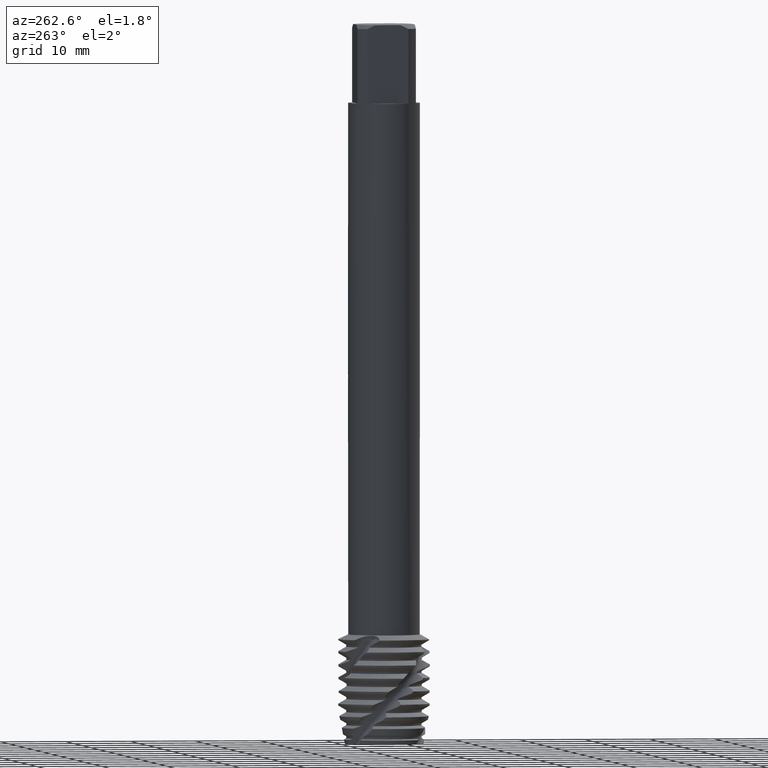
[diagram: clean part render]
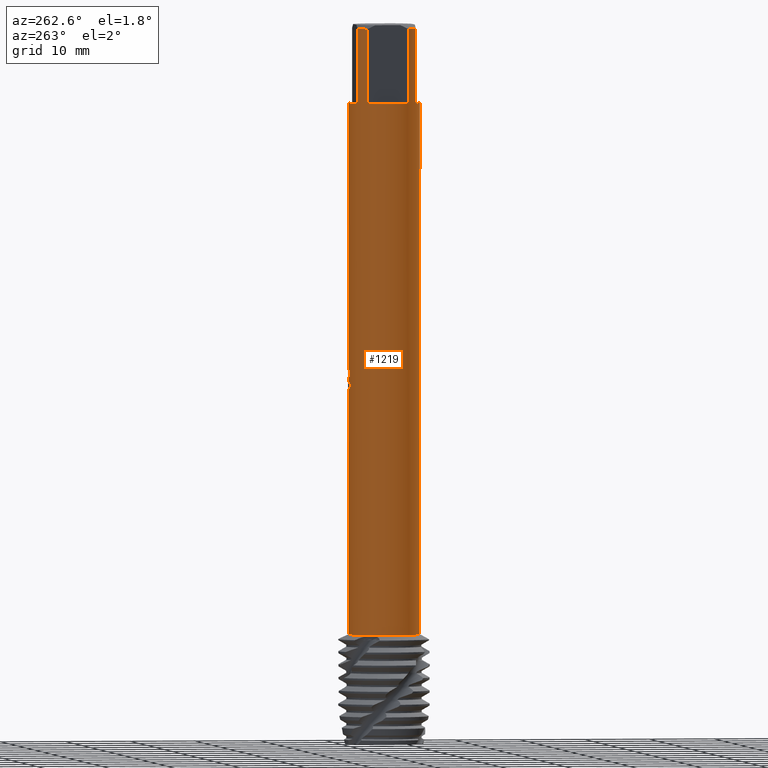
[diagram: same view with one face highlighted and labeled with its STEP entity id]
A machine part, auxiliary view. The second image highlights one B-rep face of the part: STEP entity #1219.
In plain terms, the highlighted cylindrical surface (edge-blend (fillet) strip) has radius 5.5 mm, axis along (-0, -0, 1).
Its self-contained STEP definition (entity closure, byte-faithful):
#1219=ADVANCED_FACE('',(#3527),#3528,.T.);
#1221=VERTEX_POINT('',#3530);
#1253=VERTEX_POINT('',#3564);
#1357=EDGE_CURVE('',#2769,#2993,#3679,.T.);
#1365=EDGE_CURVE('',#3081,#2437,#3687,.T.);
#1419=VERTEX_POINT('',#3747);
#1461=VERTEX_POINT('',#3796);
#1469=EDGE_CURVE('',#2865,#3303,#3804,.T.);
#1591=EDGE_CURVE('',#1419,#2343,#3935,.T.);
#1599=EDGE_CURVE('',#2343,#1797,#3944,.T.);
#1631=EDGE_CURVE('',#2961,#3081,#3980,.T.);
#1685=EDGE_CURVE('',#2377,#3211,#4041,.T.);
#1797=VERTEX_POINT('',#4167);
#1831=VERTEX_POINT('',#4205);
#1889=EDGE_CURVE('',#2295,#1831,#4266,.T.);
#1931=EDGE_CURVE('',#2993,#2865,#4311,.T.);
#1959=EDGE_CURVE('',#1221,#1419,#4342,.T.);
#2007=EDGE_CURVE('',#3303,#2305,#4391,.T.);
#2145=EDGE_CURVE('',#2487,#2377,#4542,.T.);
#2249=EDGE_CURVE('',#2437,#2769,#4659,.T.);
#2295=VERTEX_POINT('',#4712);
#2305=VERTEX_POINT('',#4722);
#2343=VERTEX_POINT('',#4766);
#2377=VERTEX_POINT('',#4801);
#2395=EDGE_CURVE('',#1831,#1253,#4820,.T.);
#2437=VERTEX_POINT('',#4864);
#2487=VERTEX_POINT('',#4920);
#2769=VERTEX_POINT('',#5227);
#2803=EDGE_CURVE('',#3223,#2961,#5262,.T.);
#2859=EDGE_CURVE('',#2295,#2305,#5325,.T.);
#2865=VERTEX_POINT('',#5331);
#2961=VERTEX_POINT('',#5438);
#2993=VERTEX_POINT('',#5473);
#3037=EDGE_CURVE('',#1253,#1461,#5521,.T.);
#3081=VERTEX_POINT('',#5569);
#3211=VERTEX_POINT('',#5708);
#3223=VERTEX_POINT('',#5720);
#3247=EDGE_CURVE('',#1797,#3223,#5747,.T.);
#3257=EDGE_CURVE('',#1461,#2487,#5758,.T.);
#3303=VERTEX_POINT('',#5806);
#3453=EDGE_CURVE('',#3211,#1221,#5964,.T.);
#3527=FACE_OUTER_BOUND('',#6092,.T.);
#3528=CYLINDRICAL_SURFACE('',#6093,5.5);
#3530=CARTESIAN_POINT('',(-4.5,3.16227766016838,-0.600000000000001));
#3564=CARTESIAN_POINT('',(-3.16227766016838,-4.5,-12.0));
#3679=LINE('',#6398,#6399);
#3687=CIRCLE('',#6428,5.5);
#3747=CARTESIAN_POINT('',(-3.16227766016838,4.5,-0.600000000000001));
#3796=CARTESIAN_POINT('',(-3.16227766016838,-4.5,-0.600000000000001));
#3804=B_SPLINE_CURVE_WITH_KNOTS('',3,(#6722,#6723,#6724,#6725,#6726,#6727,#6728,#6729,#6730,#6731,#6732,#6733,#6734,#6735,#6736,#6737),.UNSPECIFIED.,.F.,.F.,(4,2,2,2,2,2,2,4),(6.46269321319695,6.80292505982676,7.14323435893283,7.48354365803889,7.82385295714496,8.16416225625103,8.50396570883123,8.84376916141143),.UNSPECIFIED.);
#3935=LINE('',#7269,#7270);
#3944=CIRCLE('',#7281,5.5);
#3980=B_SPLINE_CURVE_WITH_KNOTS('',3,(#7392,#7393,#7394,#7395,#7396,#7397,#7398,#7399,#7400,#7401,#7402,#7403,#7404,#7405,#7406,#7407,#7408,#7409,#7410,#7411,#7412,#7413,#7414,#7415,#7416,#7417,#7418),.UNSPECIFIED.,.F.,.F.,(4,2,3,2,2,2,2,2,2,2,2,2,4),(-0.59673471528191,-0.298367357640955,0.0,0.298367357640955,0.596734715281909,0.895728696430637,1.19472267757937,1.49266530561273,1.79060793364609,2.0888607706829,2.38711360771972,2.68536644475654,2.98361928179335),.UNSPECIFIED.);
#4041=CIRCLE('',#7536,5.5);
#4167=CARTESIAN_POINT('',(-6.73533494602307E-016,5.5,-12.0));
#4205=CARTESIAN_POINT('',(6.73533494602307E-016,-5.5,-12.0));
#4266=LINE('',#8075,#8076);
#4311=ELLIPSE('',#8171,6.13210637623573,5.5);
#4342=CIRCLE('',#8247,5.5);
#4391=LINE('',#8397,#8398);
#4542=LINE('',#8695,#8696);
#4659=B_SPLINE_CURVE_WITH_KNOTS('',3,(#8981,#8982,#8983,#8984,#8985,#8986,#8987,#8988,#8989,#8990,#8991,#8992,#8993,#8994),.UNSPECIFIED.,.F.,.F.,(4,2,2,2,2,2,4),(3.44666366034617,3.93874072211946,4.43081778389275,4.92289484566604,5.41396562273861,5.90503639981119,6.39883773945317),.UNSPECIFIED.);
#4712=CARTESIAN_POINT('',(6.73533494602307E-016,-5.5,-93.278312163513));
#4722=CARTESIAN_POINT('',(0.0,5.5,-93.278312163513));
#4766=CARTESIAN_POINT('',(-3.16227766016838,4.5,-12.0));
#4801=CARTESIAN_POINT('',(-4.5,-3.16227766016838,-12.0));
#4820=CIRCLE('',#9374,5.5);
#4864=CARTESIAN_POINT('',(-1.13858074429967,5.3808580996631,-52.8488344185668));
#4920=CARTESIAN_POINT('',(-4.5,-3.16227766016838,-0.600000000000001));
#5227=CARTESIAN_POINT('',(-4.71438336917935E-016,5.5,-54.150088170707));
#5262=B_SPLINE_CURVE_WITH_KNOTS('',3,(#11175,#11176,#11177,#11178,#11179,#11180,#11181,#11182,#11183,#11184,#11185,#11186,#11187,#11188,#11189,#11190,#11191,#11192,#11193,#11194,#11195,#11196,#11197,#11198,#11199,#11200,#11201),.UNSPECIFIED.,.F.,.F.,(4,2,3,2,2,2,2,2,2,2,2,2,4),(-0.59673471528191,-0.298367357640955,0.0,0.298367357640955,0.596734715281909,0.895728696430637,1.19472267757937,1.49266530561273,1.79060793364609,2.0888607706829,2.38711360771972,2.68536644475654,2.98361928179335),.UNSPECIFIED.);
#5325=CIRCLE('',#11315,5.5);
#5331=CARTESIAN_POINT('',(-1.4707580276873,5.29970478649456,-55.1092884299674));
#5438=CARTESIAN_POINT('',(-0.535016838821347,5.47391605545588,-53.2076121231307));
#5473=CARTESIAN_POINT('',(-8.52145004144276E-016,5.5,-54.3841802470236));
#5521=LINE('',#11704,#11705);
#5569=CARTESIAN_POINT('',(-0.618567389250814,5.46510515772162,-52.8488344185668));
#5708=CARTESIAN_POINT('',(-4.5,3.16227766016838,-12.0));
#5720=CARTESIAN_POINT('',(-1.13102738707881E-014,5.49999999999999,-53.6255956929517));
#5747=LINE('',#12719,#12720);
#5758=CIRCLE('',#12737,5.5);
#5806=CARTESIAN_POINT('',(4.95714743233856E-015,5.5,-55.8341278961137));
#5964=LINE('',#13267,#13268);
#6092=EDGE_LOOP('',(#13312,#13313,#13314,#13315,#13316,#13317,#13318,#13319,#13320,#13321,#13322,#13323,#13324,#13325,#13326,#13327,#13328,#13329,#13330,#13331));
#6093=AXIS2_PLACEMENT_3D('',#13332,#13333,#13334);
#6398=CARTESIAN_POINT('',(-6.73533494602307E-016,5.5,-76.6391560817565));
#6399=VECTOR('',#13503,1.0);
#6428=AXIS2_PLACEMENT_3D('',#13510,#13511,#13512);
#6722=CARTESIAN_POINT('',(-1.51711588526455,5.28662079126903,-55.0436844681823));
#6723=CARTESIAN_POINT('',(-1.45153273511935,5.30544136544152,-55.1410561757357));
#6724=CARTESIAN_POINT('',(-1.37726252592725,5.32538832249128,-55.2303819965014));
#6725=CARTESIAN_POINT('',(-1.21920144728049,5.3637825918583,-55.388502706548));
#6726=CARTESIAN_POINT('',(-1.12986767318106,5.38360779967468,-55.4628354749158));
#6727=CARTESIAN_POINT('',(-0.935061495936943,5.42083885559304,-55.5941298950457));
#6728=CARTESIAN_POINT('',(-0.829589406848799,5.43821174564872,-55.6511013564203));
#6729=CARTESIAN_POINT('',(-0.609098599758938,5.46729955917523,-55.7428310112361));
#6730=CARTESIAN_POINT('',(-0.493889792656154,5.47901630031906,-55.7776616425182));
#6731=CARTESIAN_POINT('',(-0.261658565917761,5.4950051447965,-55.8234523084837));
#6732=CARTESIAN_POINT('',(-0.144632994307208,5.49926805323195,-55.8343995668595));
#6733=CARTESIAN_POINT('',(0.0820676089502035,5.50055401810113,-55.8343995668595));
#6734=CARTESIAN_POINT('',(0.198966907076402,5.4976285055809,-55.8234842440393));
#6735=CARTESIAN_POINT('',(0.431024756882665,5.48431624493311,-55.7777800964683));
#6736=CARTESIAN_POINT('',(0.546186239753288,5.47393875864273,-55.74300345815));
#6737=CARTESIAN_POINT('',(0.656410503657635,5.4606890820379,-55.6971893734686));
#7269=CARTESIAN_POINT('',(-3.16227766016838,4.5,-6.3));
#7270=VECTOR('',#13786,1.0);
#7281=AXIS2_PLACEMENT_3D('',#13798,#13799,#13800);
#7392=CARTESIAN_POINT('',(0.731635047100288,5.45112008286871,-52.2949559803226));
#7393=CARTESIAN_POINT('',(0.801608716650053,5.44172840038171,-52.365005500056));
#7394=CARTESIAN_POINT('',(0.862360582713813,5.43212722885907,-52.4537379639577));
#7395=CARTESIAN_POINT('',(0.943032126809186,5.41870486662565,-52.6484025590637));
#7396=CARTESIAN_POINT('',(0.962941079307423,5.41504796634178,-52.7543504279651));
#7397=CARTESIAN_POINT('',(0.962941079307423,5.41504796634178,-52.8538062138455));
#7398=CARTESIAN_POINT('',(0.962941079307423,5.41504796634178,-52.9532619997258));
#7399=CARTESIAN_POINT('',(0.943032126809186,5.41870486662565,-53.0592098686272));
#7400=CARTESIAN_POINT('',(0.862360582713813,5.43212722885907,-53.2538744637332));
#7401=CARTESIAN_POINT('',(0.801608716650054,5.44172840038171,-53.342606927635));
#7402=CARTESIAN_POINT('',(0.661514420636027,5.46053148952752,-53.4828530833148));
#7403=CARTESIAN_POINT('',(0.572705316827109,5.4709753949192,-53.5437408129201));
#7404=CARTESIAN_POINT('',(0.377854204728945,5.48787657944286,-53.6246037127661));
#7405=CARTESIAN_POINT('',(0.271794841810208,5.49418425323492,-53.6445682630522));
#7406=CARTESIAN_POINT('',(0.0729134976630152,5.50041334210769,-53.6445682630522));
#7407=CARTESIAN_POINT('',(-0.0329838689481102,5.50076363273605,-53.624729139216));
#7408=CARTESIAN_POINT('',(-0.227746782153928,5.49614591165759,-53.5440766792741));
#7409=CARTESIAN_POINT('',(-0.31661756494943,5.49132958536069,-53.4832673745375));
#7410=CARTESIAN_POINT('',(-0.457016394582919,5.48143171259988,-53.3429657790205));
#7411=CARTESIAN_POINT('',(-0.51790518390877,5.47571207998014,-53.2540726743729));
#7412=CARTESIAN_POINT('',(-0.598690854039744,5.46746905203251,-53.0592059955348));
#7413=CARTESIAN_POINT('',(-0.618583019105971,5.46510338863536,-52.9532238261911));
#7414=CARTESIAN_POINT('',(-0.618583019105971,5.46510338863536,-52.7543886014999));
#7415=CARTESIAN_POINT('',(-0.598690854039748,5.46746905203251,-52.6484064321561));
#7416=CARTESIAN_POINT('',(-0.517905183908776,5.47571207998014,-52.453539753318));
#7417=CARTESIAN_POINT('',(-0.45701639458292,5.48143171259988,-52.3646466486704));
#7418=CARTESIAN_POINT('',(-0.386780454009451,5.48638322398247,-52.2944593504513));
#7536=AXIS2_PLACEMENT_3D('',#13910,#13911,#13912);
#8075=CARTESIAN_POINT('',(6.73533494602307E-016,-5.5,-76.6391560817565));
#8076=VECTOR('',#14136,1.0);
#8171=AXIS2_PLACEMENT_3D('',#14172,#14173,#14174);
#8247=AXIS2_PLACEMENT_3D('',#14206,#14207,#14208);
#8397=CARTESIAN_POINT('',(-6.73533494602307E-016,5.5,-76.6391560817565));
#8398=VECTOR('',#14234,1.0);
#8695=CARTESIAN_POINT('',(-4.5,-3.16227766016838,-6.3));
#8696=VECTOR('',#14395,1.0);
#8981=CARTESIAN_POINT('',(-1.03916192381051,5.40093903836198,-52.3599610087909));
#8982=CARTESIAN_POINT('',(-1.10572420157615,5.38813219869273,-52.5202954825092));
#8983=CARTESIAN_POINT('',(-1.13861991969205,5.38084981006536,-52.6949063595483));
#8984=CARTESIAN_POINT('',(-1.13861991969205,5.38084981006536,-53.0229577340638));
#8985=CARTESIAN_POINT('',(-1.10572420157615,5.38813219869273,-53.197568611103));
#8986=CARTESIAN_POINT('',(-0.972599646044885,5.41374587803125,-53.5182375585396));
#8987=CARTESIAN_POINT('',(-0.872395866157432,5.43162246195674,-53.6643421881619));
#8988=CARTESIAN_POINT('',(-0.641637640671163,5.4636839860998,-53.8948209105801));
#8989=CARTESIAN_POINT('',(-0.495616576618676,5.47997436865585,-53.9947958939382));
#8990=CARTESIAN_POINT('',(-0.17524756211921,5.49954935996533,-54.127550646005));
#8991=CARTESIAN_POINT('',(-0.000865048237165766,5.50243525655604,-54.1603054930953));
#8992=CARTESIAN_POINT('',(0.327281890359951,5.49272062563226,-54.1603054930953));
#8993=CARTESIAN_POINT('',(0.502086588123726,5.47941447183466,-54.1272238057952));
#8994=CARTESIAN_POINT('',(0.66238541498669,5.4599675422124,-54.0605729344305));
#9374=AXIS2_PLACEMENT_3D('',#14736,#14737,#14738);
#11175=CARTESIAN_POINT('',(0.731635047100288,5.45112008286871,-52.2949559803226));
#11176=CARTESIAN_POINT('',(0.801608716650053,5.44172840038171,-52.365005500056));
#11177=CARTESIAN_POINT('',(0.862360582713813,5.43212722885907,-52.4537379639577));
#11178=CARTESIAN_POINT('',(0.943032126809186,5.41870486662565,-52.6484025590637));
#11179=CARTESIAN_POINT('',(0.962941079307423,5.41504796634178,-52.7543504279651));
#11180=CARTESIAN_POINT('',(0.962941079307423,5.41504796634178,-52.8538062138455));
#11181=CARTESIAN_POINT('',(0.962941079307423,5.41504796634178,-52.9532619997258));
#11182=CARTESIAN_POINT('',(0.943032126809186,5.41870486662565,-53.0592098686272));
#11183=CARTESIAN_POINT('',(0.862360582713813,5.43212722885907,-53.2538744637332));
#11184=CARTESIAN_POINT('',(0.801608716650054,5.44172840038171,-53.342606927635));
#11185=CARTESIAN_POINT('',(0.661514420636027,5.46053148952752,-53.4828530833148));
#11186=CARTESIAN_POINT('',(0.572705316827109,5.4709753949192,-53.5437408129201));
#11187=CARTESIAN_POINT('',(0.377854204728945,5.48787657944286,-53.6246037127661));
#11188=CARTESIAN_POINT('',(0.271794841810208,5.49418425323492,-53.6445682630522));
#11189=CARTESIAN_POINT('',(0.0729134976630152,5.50041334210769,-53.6445682630522));
#11190=CARTESIAN_POINT('',(-0.0329838689481102,5.50076363273605,-53.624729139216));
#11191=CARTESIAN_POINT('',(-0.227746782153928,5.49614591165759,-53.5440766792741));
#11192=CARTESIAN_POINT('',(-0.31661756494943,5.49132958536069,-53.4832673745375));
#11193=CARTESIAN_POINT('',(-0.457016394582919,5.48143171259988,-53.3429657790205));
#11194=CARTESIAN_POINT('',(-0.51790518390877,5.47571207998014,-53.2540726743729));
#11195=CARTESIAN_POINT('',(-0.598690854039744,5.46746905203251,-53.0592059955348));
#11196=CARTESIAN_POINT('',(-0.618583019105971,5.46510338863536,-52.9532238261911));
#11197=CARTESIAN_POINT('',(-0.618583019105971,5.46510338863536,-52.7543886014999));
#11198=CARTESIAN_POINT('',(-0.598690854039748,5.46746905203251,-52.6484064321561));
#11199=CARTESIAN_POINT('',(-0.517905183908776,5.47571207998014,-52.453539753318));
#11200=CARTESIAN_POINT('',(-0.45701639458292,5.48143171259988,-52.3646466486704));
#11201=CARTESIAN_POINT('',(-0.386780454009451,5.48638322398247,-52.2944593504513));
#11315=AXIS2_PLACEMENT_3D('',#15358,#15359,#15360);
#11704=CARTESIAN_POINT('',(-3.16227766016838,-4.5,-6.3));
#11705=VECTOR('',#15570,1.0);
#12719=CARTESIAN_POINT('',(-6.73533494602307E-016,5.5,-76.6391560817565));
#12720=VECTOR('',#15826,1.0);
#12737=AXIS2_PLACEMENT_3D('',#15839,#15840,#15841);
#13267=CARTESIAN_POINT('',(-4.5,3.16227766016838,-6.3));
#13268=VECTOR('',#16007,1.0);
#13312=ORIENTED_EDGE('',*,*,#3247,.T.);
#13313=ORIENTED_EDGE('',*,*,#2803,.T.);
#13314=ORIENTED_EDGE('',*,*,#1631,.T.);
#13315=ORIENTED_EDGE('',*,*,#1365,.T.);
#13316=ORIENTED_EDGE('',*,*,#2249,.T.);
#13317=ORIENTED_EDGE('',*,*,#1357,.T.);
#13318=ORIENTED_EDGE('',*,*,#1931,.T.);
#13319=ORIENTED_EDGE('',*,*,#1469,.T.);
#13320=ORIENTED_EDGE('',*,*,#2007,.T.);
#13321=ORIENTED_EDGE('',*,*,#2859,.F.);
#13322=ORIENTED_EDGE('',*,*,#1889,.T.);
#13323=ORIENTED_EDGE('',*,*,#2395,.T.);
#13324=ORIENTED_EDGE('',*,*,#3037,.T.);
#13325=ORIENTED_EDGE('',*,*,#3257,.T.);
#13326=ORIENTED_EDGE('',*,*,#2145,.T.);
#13327=ORIENTED_EDGE('',*,*,#1685,.T.);
#13328=ORIENTED_EDGE('',*,*,#3453,.T.);
#13329=ORIENTED_EDGE('',*,*,#1959,.T.);
#13330=ORIENTED_EDGE('',*,*,#1591,.T.);
#13331=ORIENTED_EDGE('',*,*,#1599,.T.);
#13332=CARTESIAN_POINT('',(0.0,0.0,-76.6391560817565));
#13333=DIRECTION('',(-0.0,-0.0,1.0));
#13334=DIRECTION('',(0.0,1.0,0.0));
#13503=DIRECTION('',(0.0,0.0,-1.0));
#13510=CARTESIAN_POINT('',(0.0,0.0,-52.8488344185668));
#13511=DIRECTION('',(0.0,-0.0,1.0));
#13512=DIRECTION('',(0.0,1.0,0.0));
#13786=DIRECTION('',(0.0,0.0,-1.0));
#13798=CARTESIAN_POINT('',(0.0,0.0,-12.0));
#13799=DIRECTION('',(0.0,0.0,-1.0));
#13800=DIRECTION('',(0.0,1.0,0.0));
#13910=CARTESIAN_POINT('',(0.0,0.0,-12.0));
#13911=DIRECTION('',(0.0,0.0,-1.0));
#13912=DIRECTION('',(0.0,1.0,0.0));
#14136=DIRECTION('',(-0.0,-0.0,1.0));
#14172=CARTESIAN_POINT('',(0.0,0.0,-54.3841802470236));
#14173=DIRECTION('',(-0.442195774284071,0.0,0.896918556617774));
#14174=DIRECTION('',(0.896918556617774,-0.0,0.442195774284071));
#14206=CARTESIAN_POINT('',(0.0,0.0,-0.600000000000001));
#14207=DIRECTION('',(0.0,0.0,-1.0));
#14208=DIRECTION('',(0.0,1.0,0.0));
#14234=DIRECTION('',(0.0,0.0,-1.0));
#14395=DIRECTION('',(0.0,0.0,-1.0));
#14736=CARTESIAN_POINT('',(0.0,0.0,-12.0));
#14737=DIRECTION('',(0.0,0.0,-1.0));
#14738=DIRECTION('',(0.0,1.0,0.0));
#15358=CARTESIAN_POINT('',(0.0,0.0,-93.278312163513));
#15359=DIRECTION('',(0.0,0.0,-1.0));
#15360=DIRECTION('',(0.0,1.0,0.0));
#15570=DIRECTION('',(-0.0,-0.0,1.0));
#15826=DIRECTION('',(0.0,0.0,-1.0));
#15839=CARTESIAN_POINT('',(0.0,0.0,-0.600000000000001));
#15840=DIRECTION('',(0.0,0.0,-1.0));
#15841=DIRECTION('',(0.0,1.0,0.0));
#16007=DIRECTION('',(-0.0,-0.0,1.0));